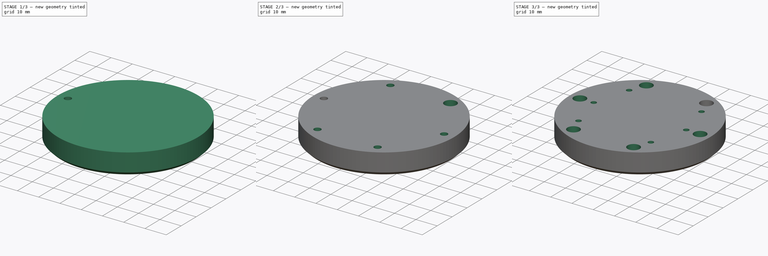
[diagram: build sequence overview — one tinted view per stage of 3, left to right]
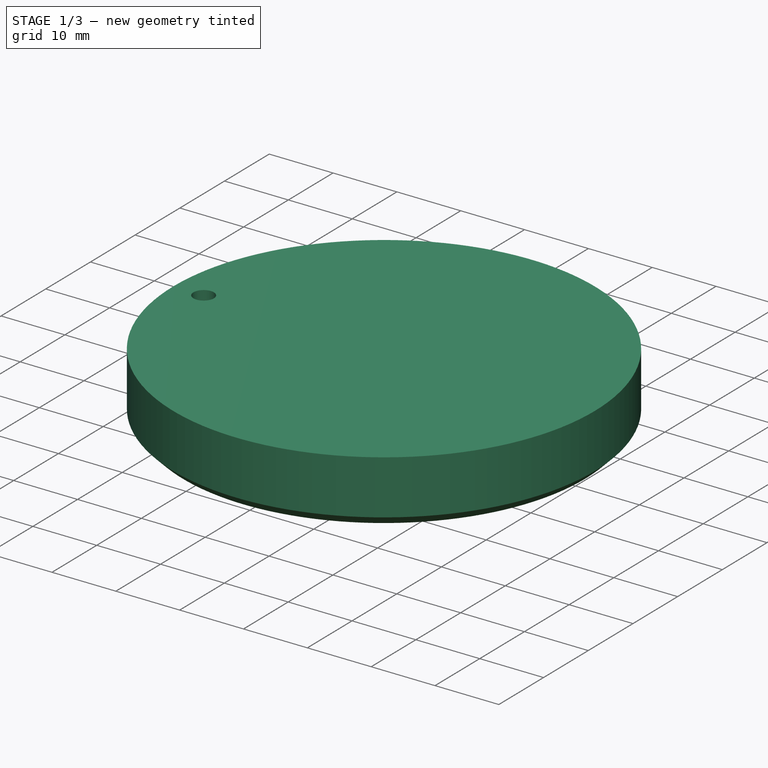
[diagram: stage 1 of 3 — iso view after this stage's code; geometry added in this stage tinted green]
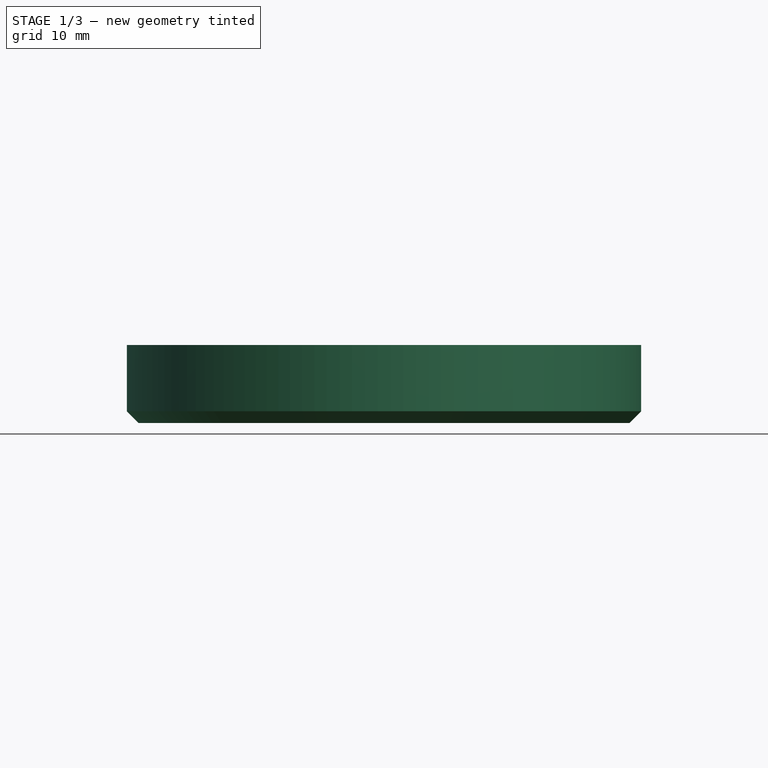
[diagram: stage 1 of 3 — front view after this stage's code; geometry added in this stage tinted green]
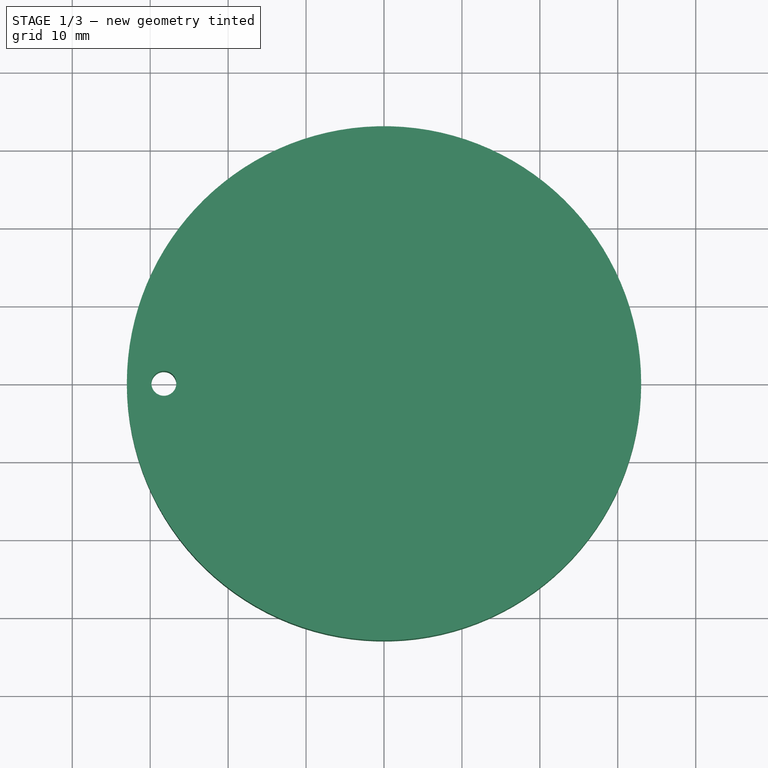
[diagram: stage 1 of 3 — top view after this stage's code; geometry added in this stage tinted green]
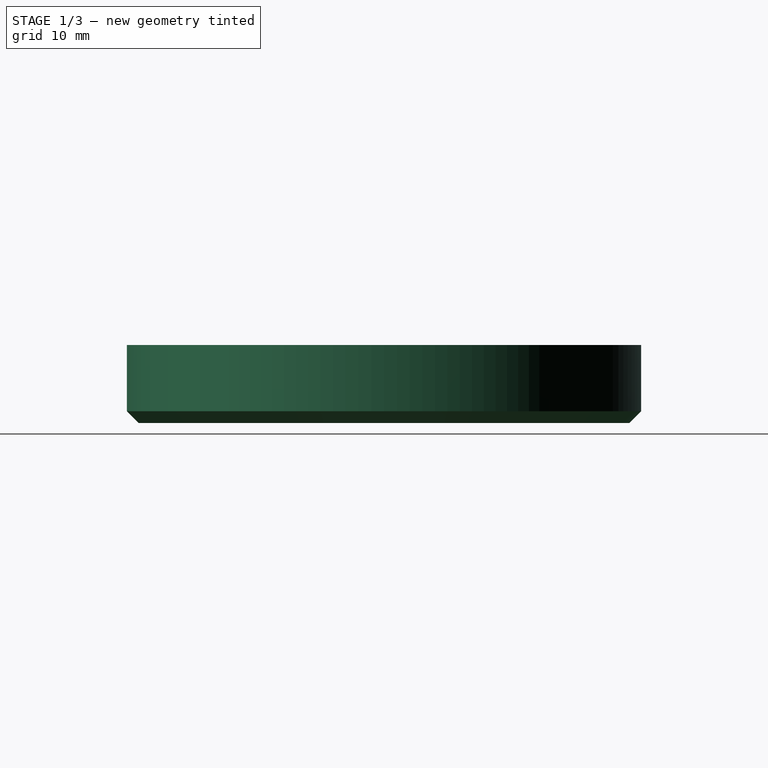
[diagram: stage 1 of 3 — right view after this stage's code; geometry added in this stage tinted green]
FCSTD DOCUMENT  (FreeCAD 0.15R4196 (Git))
Label: Traegerplatte
License: CC-BY 3.0
LicenseURL: http://creativecommons.org/licenses/by/3.0/
objects: Sketcher::SketchObject×5, PartDesign::Pocket×4, PartDesign::PolarPattern×2, App::FeaturePython×2, App::DocumentObjectGroup×1, PartDesign::Pad×1, PartDesign::Chamfer×1
note: 18 computed .brp shape members not serialized (recipe doc carries the construction recipe); baked Part::Feature solids carry a one-line shape summary decoded from their .brp

FEATURE [App::DocumentObjectGroup] Group  label="LED Traeger"
FEATURE [Sketcher::SketchObject] Sketch003
  sketch-geometry (1):
    g0: Circle CenterX=0 CenterY=0 CenterZ=0 NormalX=0 NormalY=0 NormalZ=1 Radius=33
  constraints (2):
    c: Coincident(g-1,g0)
    c: Radius(g0) = 33
FEATURE [PartDesign::Pad] Pad
  Length = 10
  Length2 = 100
  Sketch = -> Sketch003
  Type = 0
FEATURE [PartDesign::Chamfer] Chamfer
  Base = -> Pad [Edge2]
  Size = 1.5
FEATURE [Sketcher::SketchObject] Sketch  label="Sketch-Kernlochbohrung M3"
  ExternalGeometry = -> [Chamfer]
  Placement = pos=(0,0,10) rot=(0,0,1;0rad)
  Support = -> Chamfer [Face3]
  sketch-geometry (2):
    g0: Circle CenterX=-28.25 CenterY=0 CenterZ=0 NormalX=0 NormalY=0 NormalZ=1 Radius=1.6
    g1: GeomPoint [constr] X=-33 Y=0 Z=0
  constraints (5):
    c: PointOnObject(g0,g-1)
    c: Radius(g0) = 1.6
    c: PointOnObject(g1,g-1)
    c: Distance(g0,g1) = 4.75
    c: PointOnObject(g1,g-3)
FEATURE [PartDesign::Pocket] Pocket  label="Pocket-M3 Kernlochbohrung"
  Length = 5
  Sketch = -> Sketch
  Type = 1
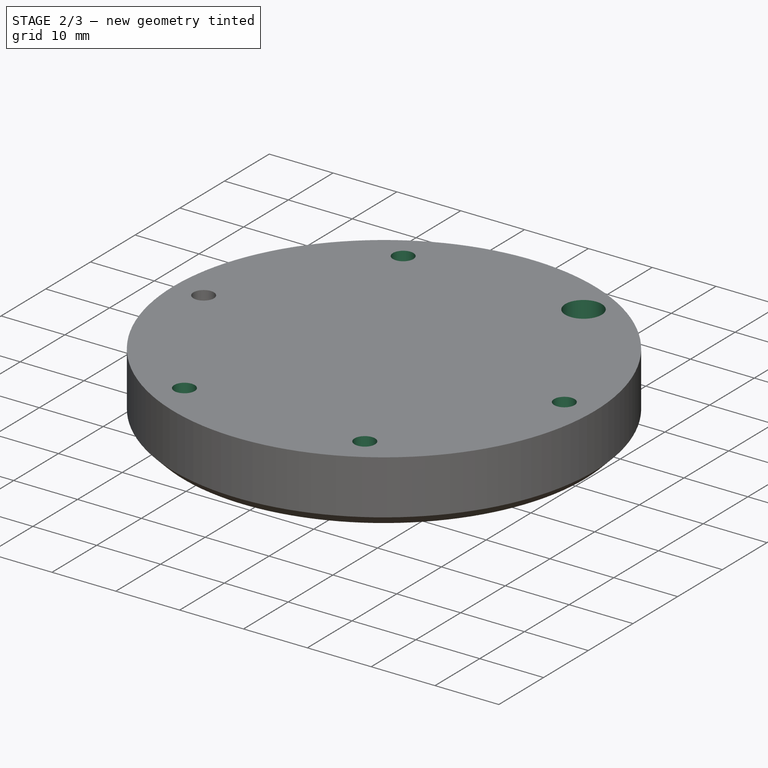
[diagram: stage 2 of 3 — iso view after this stage's code; geometry added in this stage tinted green]
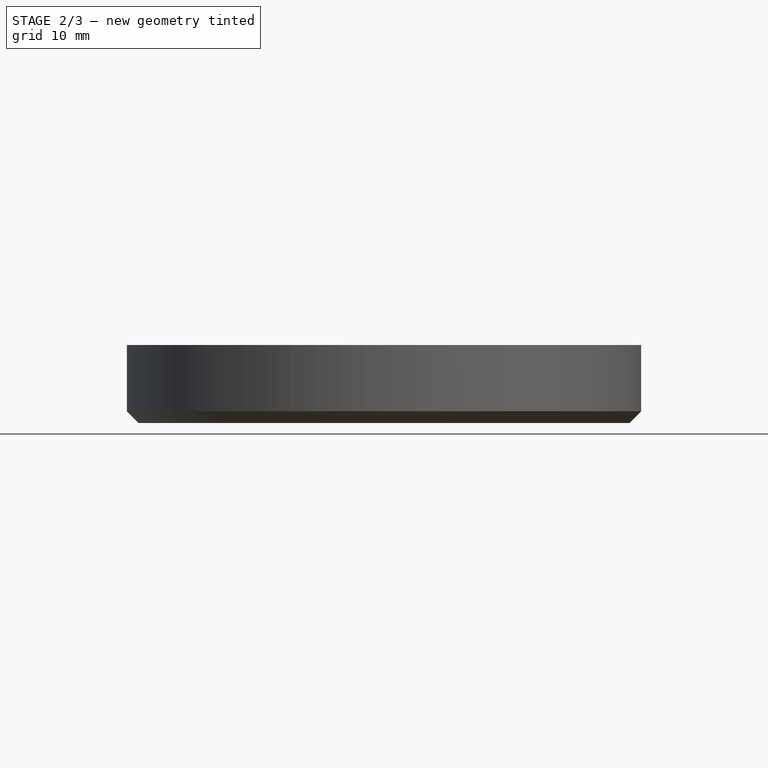
[diagram: stage 2 of 3 — front view after this stage's code; geometry added in this stage tinted green]
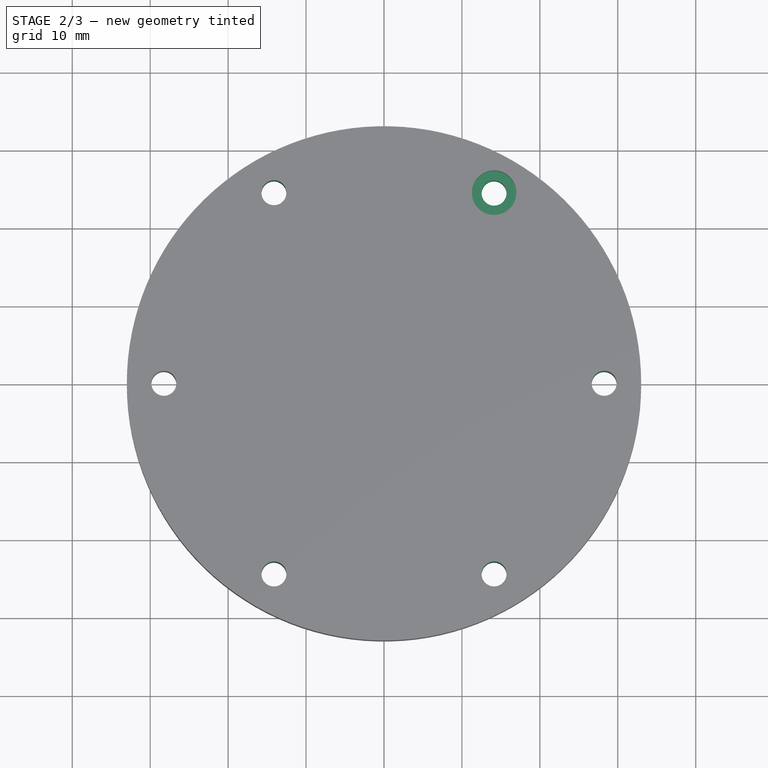
[diagram: stage 2 of 3 — top view after this stage's code; geometry added in this stage tinted green]
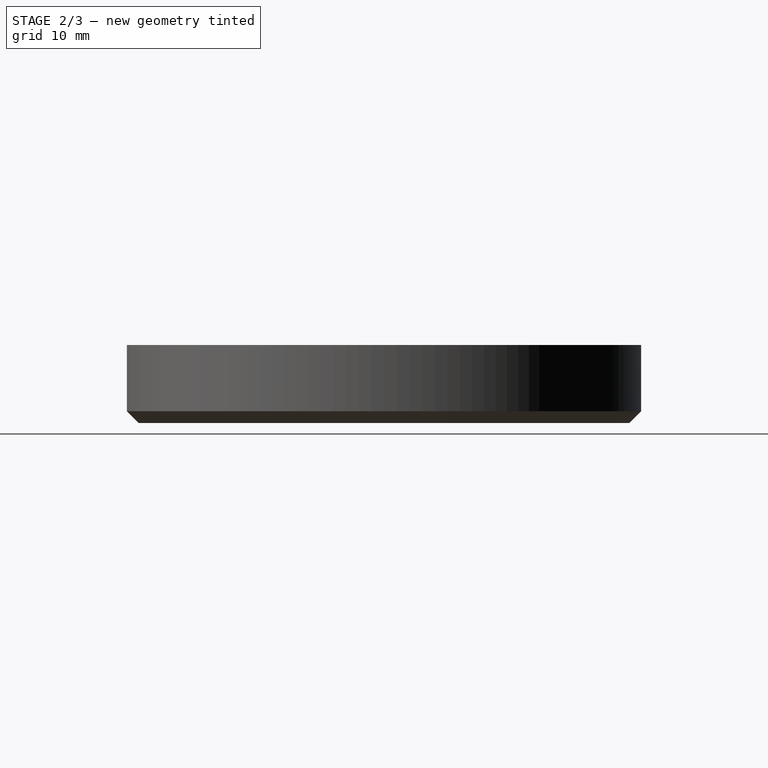
[diagram: stage 2 of 3 — right view after this stage's code; geometry added in this stage tinted green]
FEATURE [PartDesign::PolarPattern] PolarPattern  label="PolarPattern-Kernlochbohrung M3"
  Angle = 360
  Axis = -> Sketch [N_Axis]
  Occurrences = 6
  Originals = -> [Pocket]
FEATURE [Sketcher::SketchObject] Sketch001  label="Sketch - Senkung M3 Kopf"
  ExternalGeometry = -> [PolarPattern]
  Placement = pos=(0,0,10) rot=(0,0,1;0rad)
  Support = -> PolarPattern [Face3]
  sketch-geometry (1):
    g0: Circle CenterX=14.125 CenterY=24.4652 CenterZ=0 NormalX=0 NormalY=0 NormalZ=1 Radius=2.85
  constraints (2):
    c: Coincident(g-3,g0)
    c: Radius(g0) = 2.85
FEATURE [PartDesign::Pocket] Pocket001  label="Pocket-Senkung M3 Kopf"
  Length = 3.25
  Sketch = -> Sketch001
  Type = 0
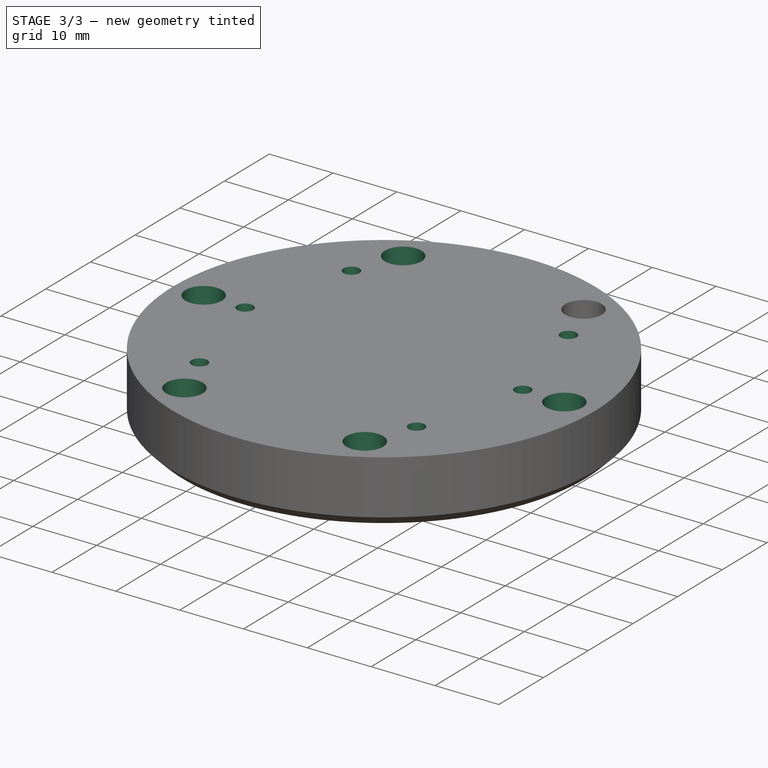
[diagram: stage 3 of 3 — iso view after this stage's code; geometry added in this stage tinted green]
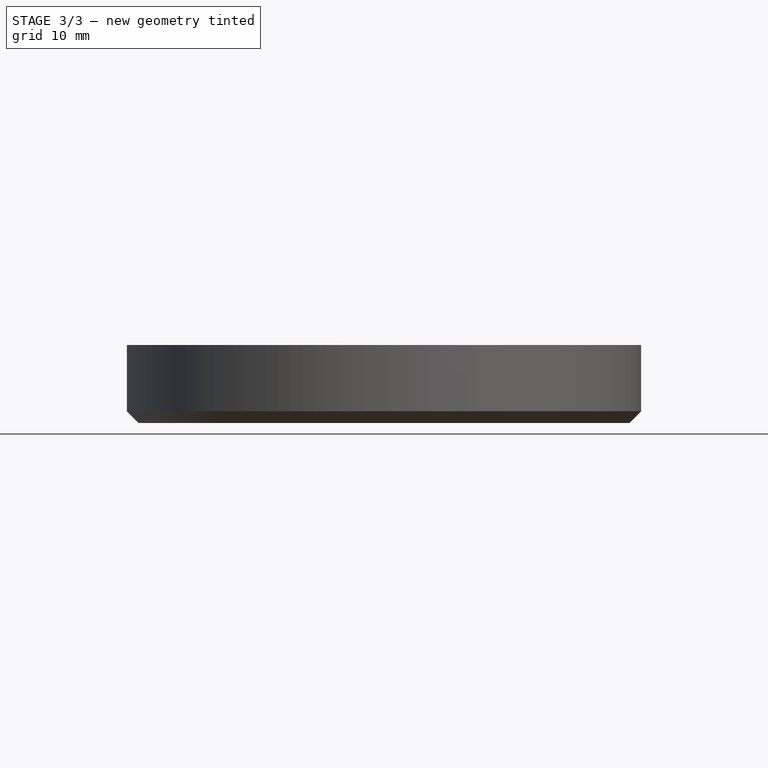
[diagram: stage 3 of 3 — front view after this stage's code; geometry added in this stage tinted green]
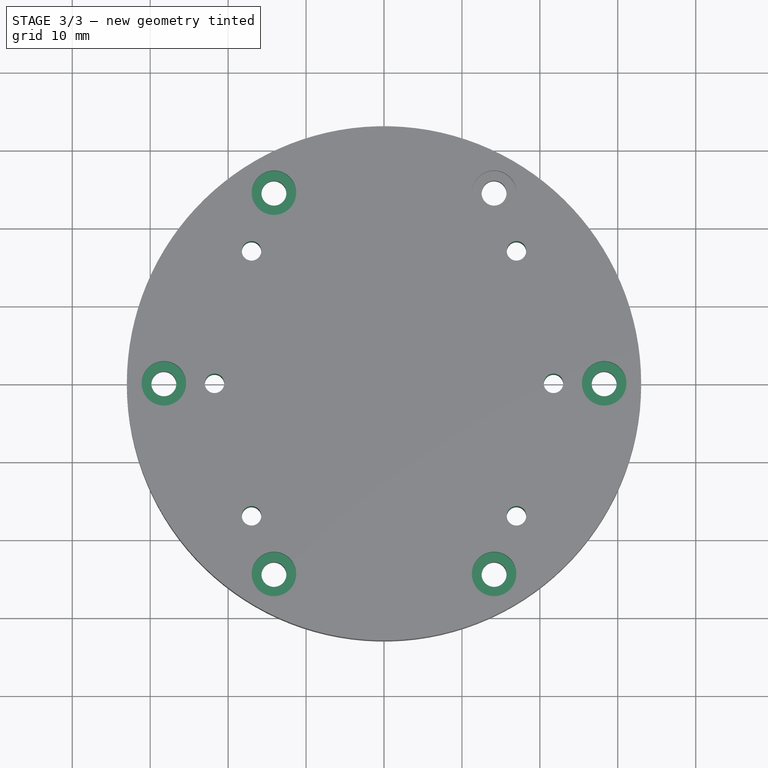
[diagram: stage 3 of 3 — top view after this stage's code; geometry added in this stage tinted green]
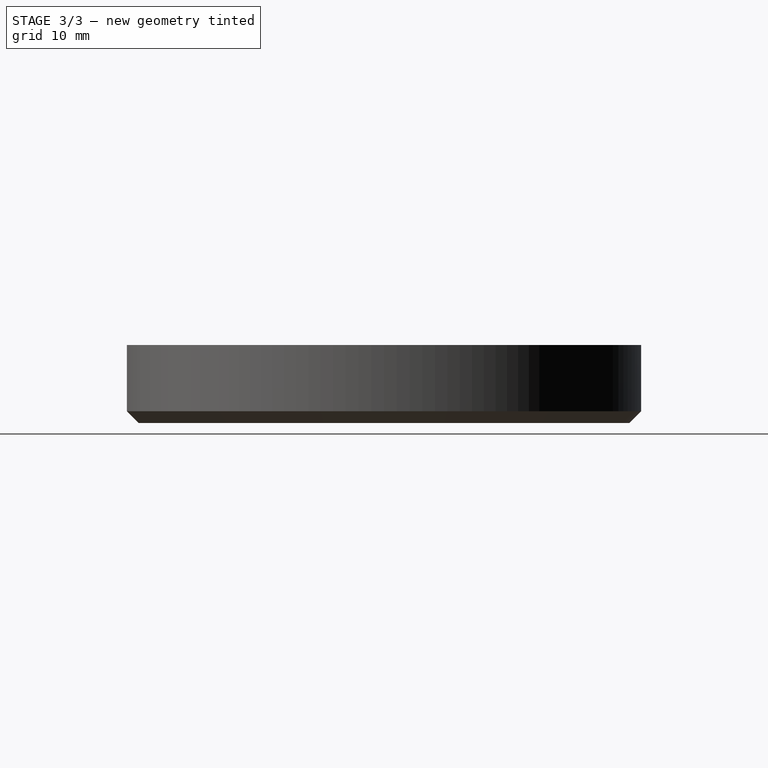
[diagram: stage 3 of 3 — right view after this stage's code; geometry added in this stage tinted green]
FEATURE [PartDesign::PolarPattern] PolarPattern001  label="PolarPattern-Senkung M3 Kopf"
  Angle = 360
  Axis = -> Sketch001 [N_Axis]
  Occurrences = 6
  Originals = -> [Pocket001]
FEATURE [Sketcher::SketchObject] Sketch002  label="Kernbohrungen Diode"
  Placement = pos=(0,0,10) rot=(0,0,1;0rad)
  Support = -> PolarPattern001 [Face3]
  sketch-geometry (8):
    g0: LineSegment [constr] StartX=-17 StartY=17 StartZ=0 EndX=17 EndY=17 EndZ=0
    g1: LineSegment [constr] StartX=17 StartY=17 StartZ=0 EndX=17 EndY=-17 EndZ=0
    g2: LineSegment [constr] StartX=17 StartY=-17 StartZ=0 EndX=-17 EndY=-17 EndZ=0
    g3: LineSegment [constr] StartX=-17 StartY=-17 StartZ=0 EndX=-17 EndY=17 EndZ=0
    g4: Circle CenterX=-17 CenterY=17 CenterZ=0 NormalX=0 NormalY=0 NormalZ=1 Radius=1.25
    g5: Circle CenterX=17 CenterY=17 CenterZ=0 NormalX=0 NormalY=0 NormalZ=1 Radius=1.25
    g6: Circle CenterX=-17 CenterY=-17 CenterZ=0 NormalX=0 NormalY=0 NormalZ=1 Radius=1.25
    g7: Circle CenterX=17 CenterY=-17 CenterZ=0 NormalX=0 NormalY=0 NormalZ=1 Radius=1.25
  constraints (20):
    c: Coincident(g0,g1)
    c: Coincident(g1,g2)
    c: Coincident(g2,g3)
    c: Coincident(g3,g0)
    c: Horizontal(g0)
    c: Horizontal(g2)
    c: Vertical(g1)
    c: Vertical(g3)
    c: Distance(g0) = 34
    c: Distance(g3) = 34
    c: Distance(g-1,g3) = 17
    c: Distance(g-1,g0) = 17
    c: Radius(g4) = 1.25
    c: Coincident(g4,g0)
    c: Radius(g5) = 1.25
    c: Coincident(g5,g0)
    c: Radius(g6) = 1.25
    c: Coincident(g6,g2)
    c: Radius(g7) = 1.25
    c: Coincident(g1,g7)
FEATURE [PartDesign::Pocket] Pocket002  label="Kernbohrungen M3 fuer Diode"
  Length = 5
  Sketch = -> Sketch002
  Type = 1
FEATURE [Sketcher::SketchObject] Sketch004  label="Bohrungen Kabeldurchführung"
  Placement = pos=(0,0,10) rot=(0,0,1;0rad)
  Support = -> Pocket002 [Face3]
  sketch-geometry (3):
    g0: Circle CenterX=-21.75 CenterY=0 CenterZ=0 NormalX=0 NormalY=0 NormalZ=1 Radius=1.25
    g1: Circle CenterX=21.75 CenterY=0 CenterZ=0 NormalX=0 NormalY=0 NormalZ=1 Radius=1.25
    g2: Circle [constr] CenterX=0 CenterY=0 CenterZ=0 NormalX=0 NormalY=0 NormalZ=1 Radius=23
  constraints (8):
    c: Radius(g0) = 1.25
    c: PointOnObject(g0,g-1)
    c: Radius(g1) = 1.25
    c: Radius(g2) = 23
    c: Coincident(g2,g-1)
    c: Tangent(g1,g2)
    c: Tangent(g0,g2)
    c: PointOnObject(g1,g-1)
FEATURE [PartDesign::Pocket] Pocket003  label="Bohrungen Kabeldurchführung001"
  Length = 5
  Sketch = -> Sketch004
  Type = 1
FEATURE [App::FeaturePython] Dimension  # Draft dimension (typed FeaturePython)
  Dimline = (20.5972,42.3747,0)
  Direction = (0,0,0)
  Distance = 44
  End = (22,0,0)
  Normal = (0,0,1)
  Start = (-22,0,0)
FEATURE [App::FeaturePython] Dimension001  # Draft dimension (typed FeaturePython)
  Dimline = (13.7588,39.0789,-0.731464)
  Direction = (0,0,0)
  Distance = 40.9987
  End = (20.5798,-0.212052,0.17162)
  Normal = (-0.00811479,0.0215697,0.999734)
  Start = (-20.4175,-0.219228,-0.160998)
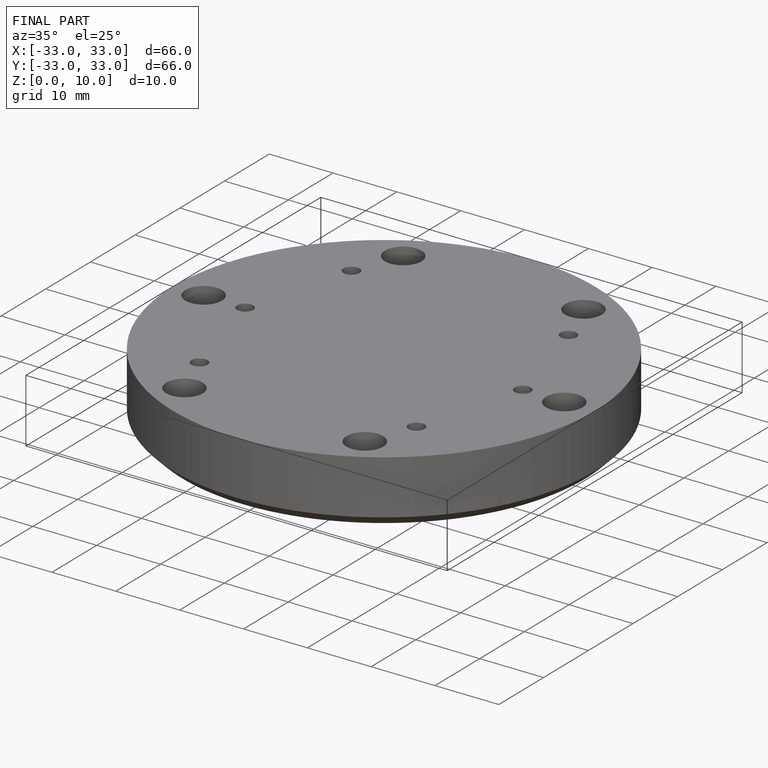
[diagram: finished part — iso view with bounding-box wireframe]
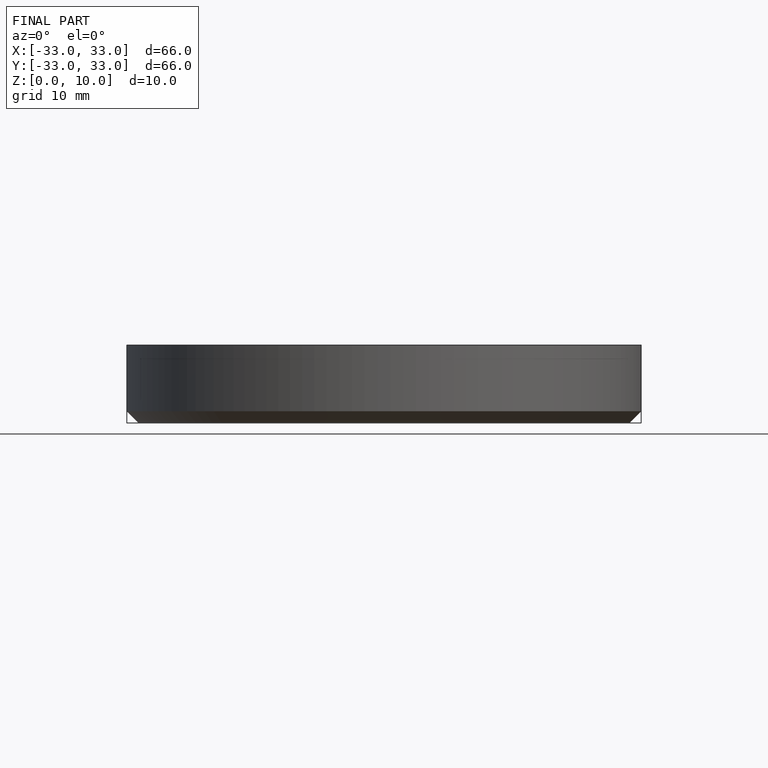
[diagram: finished part — front view with bounding-box wireframe]
